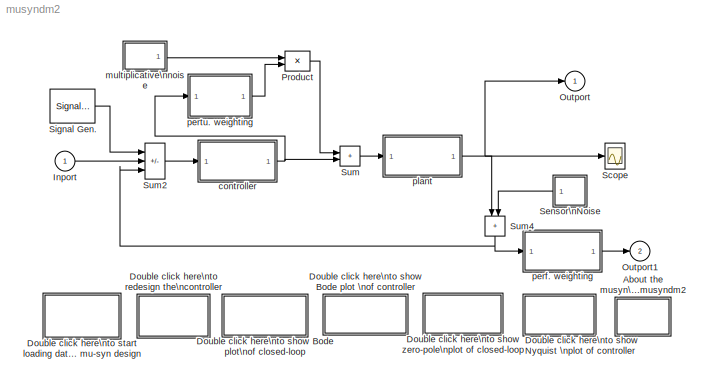
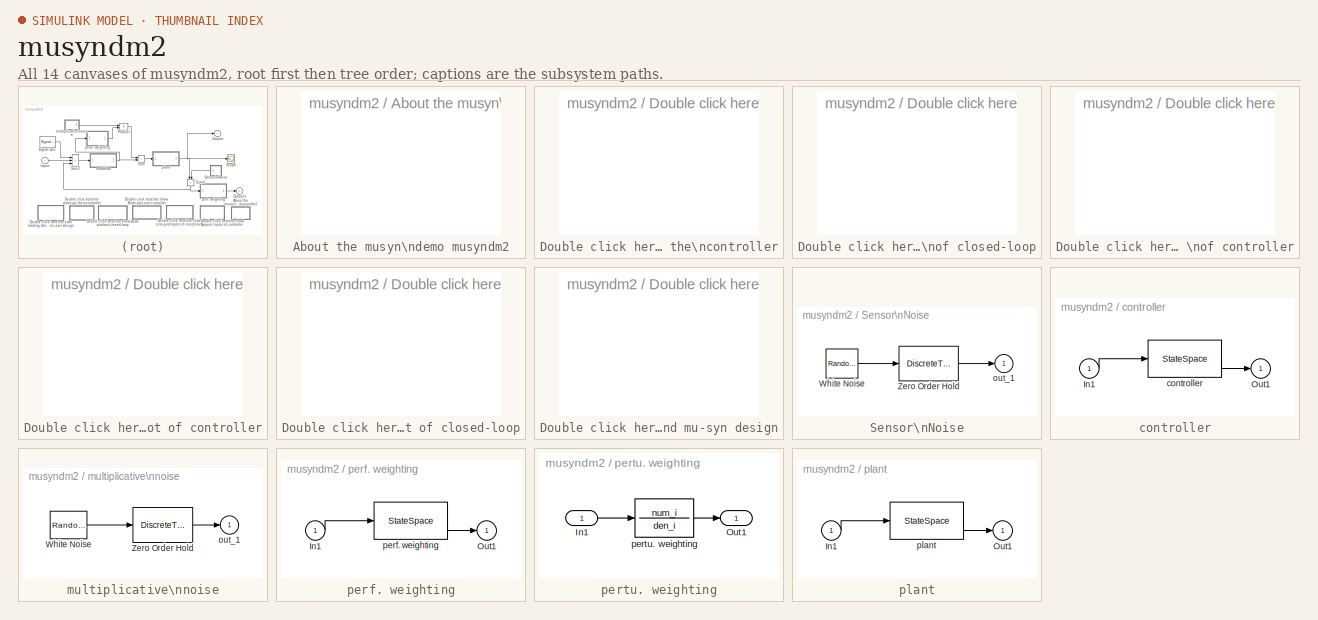
[diagram: thumbnail index - all 14 canvases of the model, root first then tree order]
MODEL musyndm2
KIND model
CONFIG AbsTol = 1e-6
CONFIG FixedStep = auto
CONFIG MaxStep = 0.1
CONFIG PreLoadFcn = mudata2
CONFIG RelTol = 1e-3
CONFIG Solver = ode15s
CONFIG SolverMode = SingleTasking
CONFIG StartTime = 0.0
CONFIG StopTime = 200
BLOCK [SubSystem] About the musyn\ndemo musyndm2
  MaskDisplay = disp('?')
  MaskIconFrame = on
  MaskIconOpaque = on
  MaskIconRotate = none
  MaskIconUnits = autoscale
  OpenFcn = clc; more(24); help mudata2; more off;
  Ports = [0, 0, 0, 0, 0]
  ShowPortLabels = on
BLOCK [SubSystem] Double click here\nto redesign the\ncontroller
  MaskDisplay = disp('Re-design')
  MaskIconFrame = on
  MaskIconOpaque = on
  MaskIconRotate = none
  MaskIconUnits = autoscale
  OpenFcn = if ~exist('a'),fprintf('\\nMust load data first\\n'), else, fprintf('\\nPress Ctrl_C to abort MuSyn Calculation\\n\\n'); mudes2; end
  Ports = [0, 0, 0, 0, 0]
  ShowPortLabels = on
BLOCK [SubSystem] Double click here\nto show Bode plot \nof controller
  MaskDisplay = disp('Controller\\nBode Plot')
  MaskIconFrame = on
  MaskIconOpaque = on
  MaskIconRotate = none
  MaskIconUnits = autoscale
  OpenFcn = if ~exist('mu'),fprintf('\\nMust be licensed for Mu Toolbox\\n'),elseif ~exist('k1'),fprintf('\\nMust Load Data & Design First\\n'),else,eval('vplot(''bode'',frsp(k1,logspace(0,4,32)))');end
  Ports = [0, 0, 0, 0, 0]
  ShowPortLabels = on
BLOCK [SubSystem] Double click here\nto show Bode plot\nof closed-loop
  MaskDisplay = disp('Closed-Loop\\nBode Plot')
  MaskIconFrame = on
  MaskIconOpaque = on
  MaskIconRotate = none
  MaskIconUnits = autoscale
  OpenFcn = if ~exist('mu'),fprintf('\\nMust be licensed for Mu Toolbox\\n'),elseif ~exist('g1'),fprintf('\\nMust Load Data & Design First\\n'),else,eval('vplot(''bode'',frsp(g1,logspace(0,4,32)))');end
  Ports = [0, 0, 0, 0, 0]
  ShowPortLabels = on
BLOCK [SubSystem] Double click here\nto show Nyquist \nplot of controller
  MaskDisplay = disp('Controller\\nNyquist')
  MaskIconFrame = on
  MaskIconOpaque = on
  MaskIconRotate = none
  MaskIconUnits = autoscale
  OpenFcn = if ~exist('mu'),fprintf('\\nMust be licensed for Mu Toolbox\\n'),elseif ~exist('k1'),fprintf('\\nMust Load Data & Design First\\n'),else,omtt=logspace(-6,6,100);eval('foo=frsp(k1,omtt);foobar=frsp(k1,-omtt);');vplot('nyq',foo,foobar);end
  Ports = [0, 0, 0, 0, 0]
  ShowPortLabels = on
BLOCK [SubSystem] Double click here\nto show zero-pole\nplot of closed-loop
  MaskDisplay = disp('Controller\\nZero-Pole Plot')
  MaskIconFrame = on
  MaskIconOpaque = on
  MaskIconRotate = none
  MaskIconUnits = autoscale
  OpenFcn = if ~exist('mu'),fprintf('\\nMust be licensed for Mu Toolbox\\n'),elseif ~exist('g1'), fprintf('Must Load Data & Design First'), else,clf,plot(1:10), eval('[x,y,z,w]=unpck(g1);clf;pzmap(x,y,z,w);clear x y z w');end
  Ports = [0, 0, 0, 0, 0]
  ShowPortLabels = on
BLOCK [SubSystem] Double click here\nto start loading data\nand mu-syn design
  MaskDisplay = disp('Re-Load\\nData')
  MaskIconFrame = on
  MaskIconOpaque = on
  MaskIconRotate = none
  MaskIconUnits = autoscale
  OpenFcn = if ~exist('mu'),fprintf('\\nMust be licensed for MuSyn Toolbox\\n'), else, fprintf('\\nLoading Data\\nWarning: New data will overlap the original working data\\n>>\\n'); mudata2; end
  Ports = [0, 0, 0, 0, 0]
  ShowPortLabels = on
BLOCK [Inport] Inport
  DataType = auto
  Interpolate = on
  Port = 1
  PortWidth = -1
  SampleTime = -1
  SignalType = auto
BLOCK [Outport] Outport
  InitialOutput = []
  OutputWhenDisabled = held
  Port = 1
BLOCK [Outport] Outport1
  InitialOutput = []
  OutputWhenDisabled = held
  Port = 2
BLOCK [Product] Product
  Inputs = 2
  Ports = [2, 1, 0, 0, 0]
  SaturateOnIntegerOverflow = on
BLOCK [Scope] Scope
  DataFormat = Matrix
  Decimation = 1
  Floating = off
  Grid = on
  LimitMaxRows = on
  MaxRows = 5000
  NumInputPorts = 1
  Ports = [1, 0, 0, 0, 0]
  SampleInput = off
  SampleTime = 0
  SaveName = ScopeData
  SaveToWorkspace = off
  TickLabels = on
  TimeRange = 10.000000
  YMax = 5
  YMin = -5
  ZoomMode = on
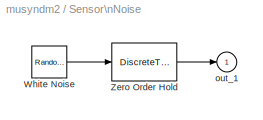
BLOCK [SubSystem] Sensor\nNoise
  MaskCallbackString = ||
  MaskDescription = White noise for continuous (s-domain) systems.\nBand-limited using zero-order-hold.
  MaskDisplay = plot(t(:),r2(:))
  MaskEnableString = on,on,on
  MaskHelp = Implemented using white noise into Zero Order Hold block. For faster simulation set sample time to highest value possible but in accordance with the fastest dynamics of system.
  MaskIconFrame = on
  MaskIconOpaque = on
  MaskIconRotate = none
  MaskIconUnits = autoscale
  MaskInitialization = Cov = @1; Ts = @2; seed = @3; r = rand(1,12)-0.5; r2 = [r(1),r;r,r(12)]; t =[1:13;1:13];
  MaskPromptString = Noise Variance:|Sample Time:|Seed
  MaskStyleString = edit,edit,edit
  MaskTunableValueString = on,on,on
  MaskValueString = 0.01|0.11|23341
  MaskVisibilityString = on,on,on
  Ports = [0, 1, 0, 0, 0]
  ShowPortLabels = on
BLOCK [RandomNumber] Sensor\nNoise/White Noise
  Mean = 0
  SampleTime = Ts
  Seed = seed
  Variance = 1
BLOCK [DiscreteTransferFcn] Sensor\nNoise/Zero Order Hold
  Denominator = [sqrt(Ts)]
  Numerator = [sqrt(Cov)]
  SampleTime = Ts
BLOCK [Outport] Sensor\nNoise/out_1
  InitialOutput = []
  OutputWhenDisabled = held
  Port = 1
BLOCK [SignalGenerator] Signal Gen.
  Amplitude = 2.000000
  Frequency = 1.000000
  Units = rad/sec
  WaveForm = square
BLOCK [Sum] Sum
  IconShape = rectangular
  Inputs = ++
  Ports = [2, 1, 0, 0, 0]
  SaturateOnIntegerOverflow = on
BLOCK [Sum] Sum2
  IconShape = rectangular
  Inputs = -++
  Ports = [3, 1, 0, 0, 0]
  SaturateOnIntegerOverflow = on
BLOCK [Sum] Sum4
  IconShape = rectangular
  Inputs = ++
  MaskIconFrame = on
  MaskIconOpaque = on
  MaskIconRotate = none
  MaskIconUnits = autoscale
  Ports = [2, 1, 0, 0, 0]
  SaturateOnIntegerOverflow = on
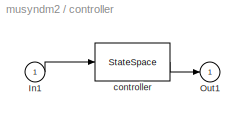
BLOCK [SubSystem] controller
  MaskCallbackString = |||
  MaskDescription = H_infty Controller:
  MaskDisplay = disp('H_infinity\\nController')
  MaskEnableString = on,on,on,on
  MaskHelp = . Mask and unmask this block to see how it works.Usinf Mu Analysis and Synthesis Toolbox to design a H_infinity Controller. Change the parameters, see the designed system.
  MaskIconFrame = on
  MaskIconOpaque = on
  MaskIconRotate = none
  MaskIconUnits = autoscale
  MaskInitialization = ak=@1;bk=@2;ck=@3;dk=@4;
  MaskPromptString = ak:|bk:|ck:|dk:
  MaskStyleString = edit,edit,edit,edit
  MaskTunableValueString = on,on,on,on
  MaskValueString = ak|bk|ck|dk
  MaskVisibilityString = on,on,on,on
  Ports = [1, 1, 0, 0, 0]
  ShowPortLabels = on
BLOCK [Inport] controller/In1
  DataType = auto
  Interpolate = on
  Port = 1
  PortWidth = -1
  SampleTime = -1
  SignalType = auto
BLOCK [Outport] controller/Out1
  InitialOutput = []
  OutputWhenDisabled = held
  Port = 1
BLOCK [StateSpace] controller/controller
  A = ak
  B = bk
  C = ck
  D = dk
  X0 = 0
BLOCK [SubSystem] multiplicative\nnoise
  MaskCallbackString = ||
  MaskDescription = White noise for continuous (s-domain) systems.\nBand-limited using zero-order-hold.
  MaskDisplay = plot(t(:),r2(:))
  MaskEnableString = on,on,on
  MaskHelp = Implemented using white noise into Zero Order Hold block. For faster simulation set sample time to highest value possible but in accordance with the fastest dynamics of system.
  MaskIconFrame = on
  MaskIconOpaque = on
  MaskIconRotate = none
  MaskIconUnits = autoscale
  MaskInitialization = Cov = @1; Ts = @2; seed = @3; r = rand(1,12)-0.5; r2 = [r(1),r;r,r(12)]; t =[1:13;1:13];
  MaskPromptString = Noise Variance:|Sample Time:|Seed
  MaskStyleString = edit,edit,edit
  MaskTunableValueString = on,on,on
  MaskValueString = 0.1|1|68932234
  MaskVisibilityString = on,on,on
  Ports = [0, 1, 0, 0, 0]
  ShowPortLabels = on
BLOCK [RandomNumber] multiplicative\nnoise/White Noise
  Mean = 0
  SampleTime = Ts
  Seed = seed
  Variance = 1
BLOCK [DiscreteTransferFcn] multiplicative\nnoise/Zero Order Hold
  Denominator = [sqrt(Ts)]
  Numerator = [sqrt(Cov)]
  SampleTime = Ts
BLOCK [Outport] multiplicative\nnoise/out_1
  InitialOutput = []
  OutputWhenDisabled = held
  Port = 1
BLOCK [SubSystem] perf. weighting
  MaskCallbackString = |
  MaskDescription = Performance weighting function:
  MaskDisplay = disp('output\\nweighting.')
  MaskEnableString = on,on
  MaskHelp = This is the weighting function of the plant model.
  MaskIconFrame = on
  MaskIconOpaque = on
  MaskIconRotate = none
  MaskIconUnits = autoscale
  MaskInitialization = [ap,bp,cp,dp]=tf2ss(@1,@2);
  MaskPromptString = numerator:|denominator:
  MaskStyleString = edit,edit
  MaskTunableValueString = on,on
  MaskValueString = num_o|den_o
  MaskVisibilityString = on,on
  Ports = [1, 1, 0, 0, 0]
  ShowPortLabels = on
BLOCK [Inport] perf. weighting/In1
  DataType = auto
  Interpolate = on
  Port = 1
  PortWidth = -1
  SampleTime = -1
  SignalType = auto
BLOCK [Outport] perf. weighting/Out1
  InitialOutput = []
  OutputWhenDisabled = held
  Port = 1
BLOCK [StateSpace] perf. weighting/perf. weighting
  A = ap
  B = bp
  C = cp
  D = dp
  X0 = 0
BLOCK [SubSystem] pertu. weighting
  MaskDisplay = disp('   input   \\nweighting')\n
  MaskIconFrame = on
  MaskIconOpaque = on
  MaskIconRotate = none
  MaskIconUnits = autoscale
  MaskType = Transfer Fcn
  Ports = [1, 1, 0, 0, 0]
  ShowPortLabels = on
BLOCK [Inport] pertu. weighting/In1
  DataType = auto
  Interpolate = on
  Port = 1
  PortWidth = -1
  SampleTime = -1
  SignalType = auto
BLOCK [Outport] pertu. weighting/Out1
  InitialOutput = []
  OutputWhenDisabled = held
  Port = 1
BLOCK [TransferFcn] pertu. weighting/pertu. weighting
  Denominator = den_i
  Numerator = num_i
BLOCK [SubSystem] plant
  MaskCallbackString = |||
  MaskDescription = state space model:
  MaskDisplay = disp('plant\\nmodel')
  MaskEnableString = on,on,on,on
  MaskHelp = system plant
  MaskIconFrame = on
  MaskIconOpaque = on
  MaskIconRotate = none
  MaskIconUnits = autoscale
  MaskInitialization = a=@1; b=@2; c=@3; d=@4;
  MaskPromptString = a: |b: |c: |d:
  MaskStyleString = edit,edit,edit,edit
  MaskTunableValueString = on,on,on,on
  MaskValueString = a|b|c|d
  MaskVisibilityString = on,on,on,on
  Ports = [1, 1, 0, 0, 0]
  ShowPortLabels = on
BLOCK [Inport] plant/In1
  DataType = auto
  Interpolate = on
  Port = 1
  PortWidth = -1
  SampleTime = -1
  SignalType = auto
BLOCK [Outport] plant/Out1
  InitialOutput = []
  OutputWhenDisabled = held
  Port = 1
BLOCK [StateSpace] plant/plant
  A = a
  B = b
  C = c
  D = d
  X0 = 0
LINE Inport:1 -> Sum2:2
LINE Product:1 -> Sum:1
LINE Sensor\nNoise/White Noise:1 -> Sensor\nNoise/Zero Order Hold:1
LINE Sensor\nNoise/Zero Order Hold:1 -> Sensor\nNoise/out_1:1
LINE Sensor\nNoise:1 -> Sum4:2
LINE Signal Gen.:1 -> Sum2:1
LINE Sum2:1 -> controller:1
NET Sum4:1 -> Sum2:3, perf. weighting:1
LINE Sum:1 -> plant:1
LINE controller/In1:1 -> controller/controller:1
LINE controller/controller:1 -> controller/Out1:1
NET controller:1 -> Sum:2, pertu. weighting:1
LINE multiplicative\nnoise/White Noise:1 -> multiplicative\nnoise/Zero Order Hold:1
LINE multiplicative\nnoise/Zero Order Hold:1 -> multiplicative\nnoise/out_1:1
LINE multiplicative\nnoise:1 -> Product:1
LINE perf. weighting/In1:1 -> perf. weighting/perf. weighting:1
LINE perf. weighting/perf. weighting:1 -> perf. weighting/Out1:1
LINE perf. weighting:1 -> Outport1:1
LINE pertu. weighting/In1:1 -> pertu. weighting/pertu. weighting:1
LINE pertu. weighting/pertu. weighting:1 -> pertu. weighting/Out1:1
LINE pertu. weighting:1 -> Product:2
LINE plant/In1:1 -> plant/plant:1
LINE plant/plant:1 -> plant/Out1:1
NET plant:1 -> Outport:1, Scope:1, Sum4:1
note: NET lines group one-source signal fan-out (src -> all destinations, sorted); 1:1 wires keep LINE
